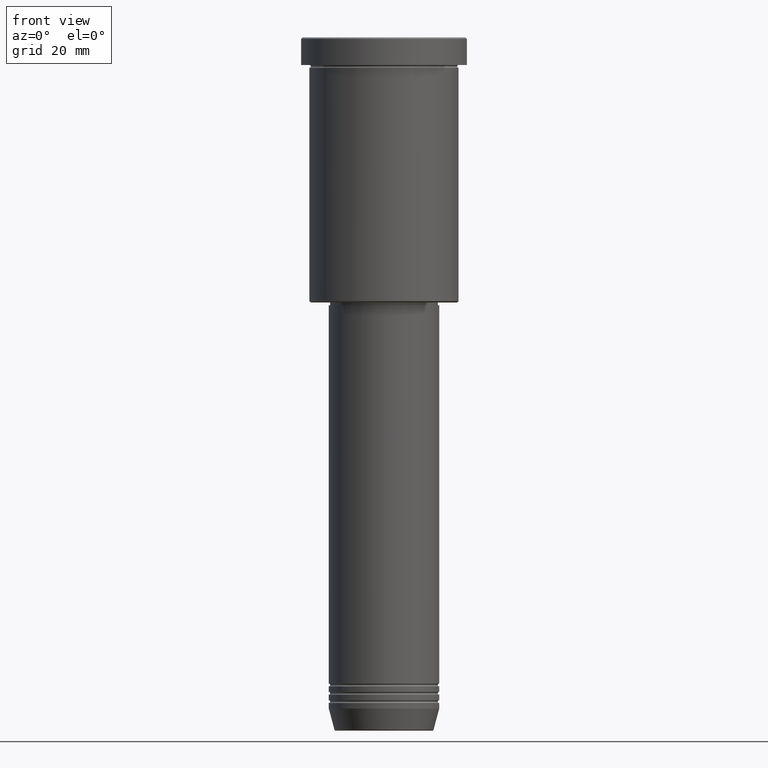
[diagram: clean part render]
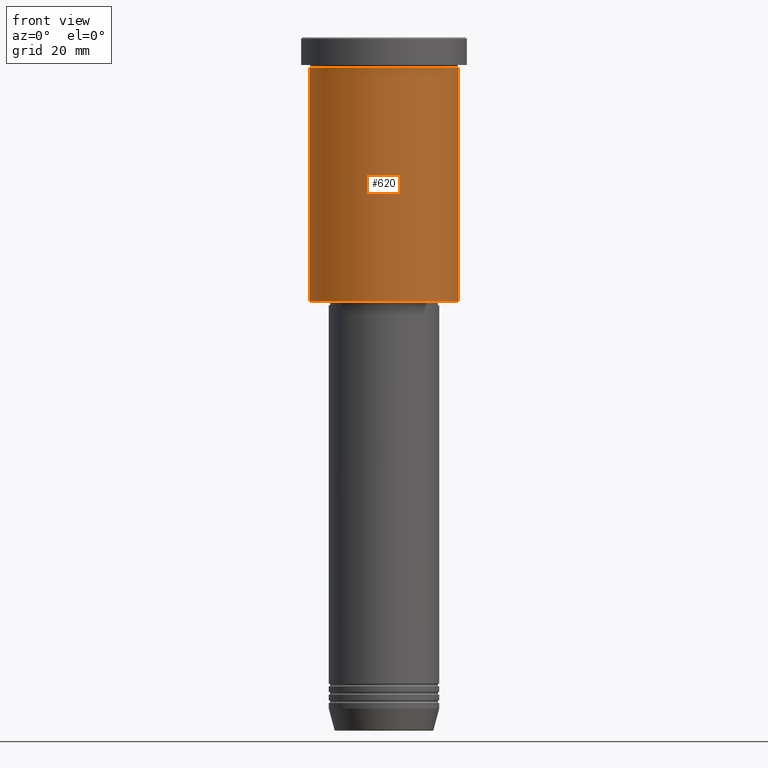
[diagram: same view with one face highlighted and labeled with its STEP entity id]
A machine part, front view. The second image highlights one B-rep face of the part: STEP entity #620.
In plain terms, the highlighted cylindrical surface (partial cylindrical patch) has radius 27 mm, axis along (-0, -0, 1).
Its self-contained STEP definition (entity closure, byte-faithful):
#35 = VERTEX_POINT ( 'NONE', #308 ) ;
#69 = CARTESIAN_POINT ( 'NONE',  ( 0.000000000000000000, 0.000000000000000000, -10.99999999999999289 ) ) ;
#72 = EDGE_LOOP ( 'NONE', ( #225, #550, #908, #883 ) ) ;
#78 = CARTESIAN_POINT ( 'NONE',  ( -27.00000000000000355, 3.306546357697854128E-15, -10.99999999999999289 ) ) ;
#132 = DIRECTION ( 'NONE',  ( -0.000000000000000000, -0.000000000000000000, 1.000000000000000000 ) ) ;
#137 = DIRECTION ( 'NONE',  ( 1.000000000000000000, 0.000000000000000000, 0.000000000000000000 ) ) ;
#177 = CYLINDRICAL_SURFACE ( 'NONE', #1056, 27.00000000000000355 ) ;
#194 = EDGE_CURVE ( 'NONE', #35, #512, #433, .T. ) ;
#225 = ORIENTED_EDGE ( 'NONE', *, *, #805, .F. ) ;
#233 = VECTOR ( 'NONE', #618, 1000.000000000000000 ) ;
#240 = CARTESIAN_POINT ( 'NONE',  ( -27.00000000000000355, 3.306546357697854128E-15, 0.000000000000000000 ) ) ;
#275 = DIRECTION ( 'NONE',  ( -0.000000000000000000, -0.000000000000000000, 1.000000000000000000 ) ) ;
#308 = CARTESIAN_POINT ( 'NONE',  ( 27.00000000000000355, 0.000000000000000000, -95.50000000000004263 ) ) ;
#404 = VECTOR ( 'NONE', #970, 1000.000000000000000 ) ;
#410 = LINE ( 'NONE', #240, #404 ) ;
#433 = LINE ( 'NONE', #1158, #233 ) ;
#512 = VERTEX_POINT ( 'NONE', #1180 ) ;
#520 = CARTESIAN_POINT ( 'NONE',  ( 0.000000000000000000, 0.000000000000000000, -95.50000000000004263 ) ) ;
#529 = DIRECTION ( 'NONE',  ( -1.000000000000000000, 0.000000000000000000, 0.000000000000000000 ) ) ;
#550 = ORIENTED_EDGE ( 'NONE', *, *, #966, .T. ) ;
#575 = AXIS2_PLACEMENT_3D ( 'NONE', #69, #132, #137 ) ;
#618 = DIRECTION ( 'NONE',  ( -0.000000000000000000, -0.000000000000000000, 1.000000000000000000 ) ) ;
#620 = ADVANCED_FACE ( 'NONE', ( #627 ), #177, .T. ) ;
#627 = FACE_OUTER_BOUND ( 'NONE', #72, .T. ) ;
#636 = DIRECTION ( 'NONE',  ( 1.000000000000000000, 0.000000000000000000, 0.000000000000000000 ) ) ;
#732 = AXIS2_PLACEMENT_3D ( 'NONE', #520, #1068, #529 ) ;
#782 = EDGE_CURVE ( 'NONE', #1020, #512, #866, .T. ) ;
#805 = EDGE_CURVE ( 'NONE', #914, #1020, #410, .T. ) ;
#866 = CIRCLE ( 'NONE', #575, 27.00000000000000355 ) ;
#880 = CARTESIAN_POINT ( 'NONE',  ( -27.00000000000000355, 3.306546357697854128E-15, -95.50000000000004263 ) ) ;
#883 = ORIENTED_EDGE ( 'NONE', *, *, #782, .F. ) ;
#908 = ORIENTED_EDGE ( 'NONE', *, *, #194, .T. ) ;
#914 = VERTEX_POINT ( 'NONE', #880 ) ;
#966 = EDGE_CURVE ( 'NONE', #914, #35, #1095, .T. ) ;
#970 = DIRECTION ( 'NONE',  ( -0.000000000000000000, -0.000000000000000000, 1.000000000000000000 ) ) ;
#1020 = VERTEX_POINT ( 'NONE', #78 ) ;
#1056 = AXIS2_PLACEMENT_3D ( 'NONE', #1093, #275, #636 ) ;
#1068 = DIRECTION ( 'NONE',  ( -0.000000000000000000, -0.000000000000000000, 1.000000000000000000 ) ) ;
#1093 = CARTESIAN_POINT ( 'NONE',  ( 0.000000000000000000, 0.000000000000000000, 0.000000000000000000 ) ) ;
#1095 = CIRCLE ( 'NONE', #732, 27.00000000000000355 ) ;
#1158 = CARTESIAN_POINT ( 'NONE',  ( 27.00000000000000355, 0.000000000000000000, 0.000000000000000000 ) ) ;
#1180 = CARTESIAN_POINT ( 'NONE',  ( 27.00000000000000355, 0.000000000000000000, -10.99999999999999289 ) ) ;